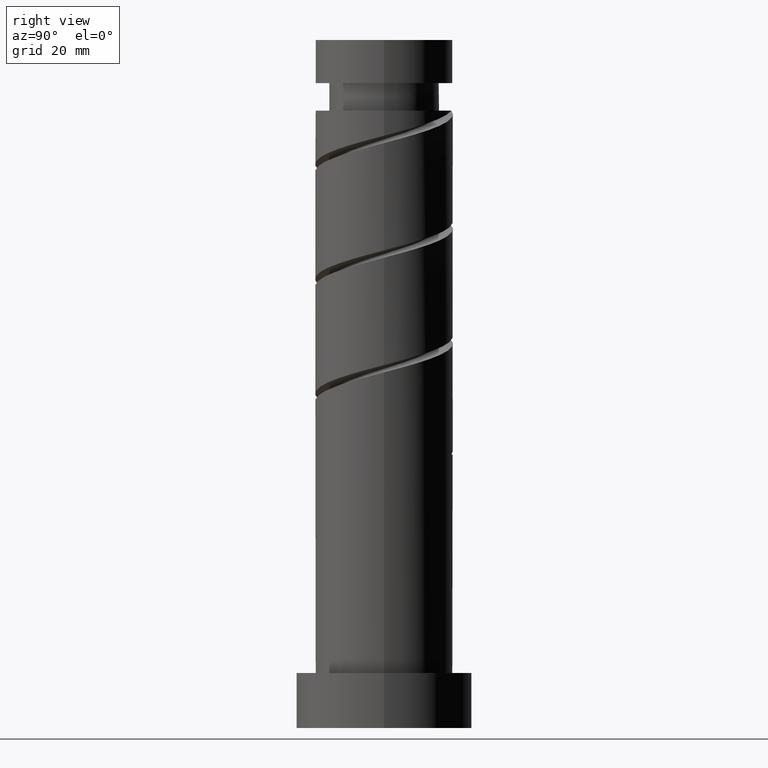
[diagram: clean part render]
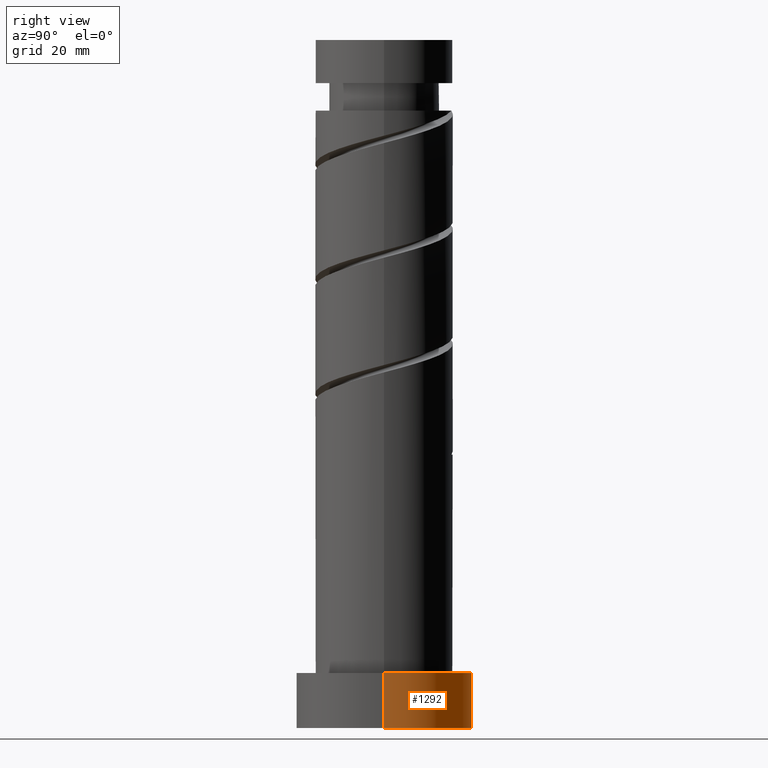
[diagram: same view with one face highlighted and labeled with its STEP entity id]
A machine part, right view. The second image highlights one B-rep face of the part: STEP entity #1292.
In plain terms, the highlighted cylindrical surface (partial cylindrical patch) has radius 16 mm, axis along (-0, -0, -1).
Its self-contained STEP definition (entity closure, byte-faithful):
#2 = CIRCLE ( 'NONE', #1277, 16.00000000000000000 ) ;
#22 = EDGE_CURVE ( 'NONE', #375, #832, #2, .T. ) ;
#149 = DIRECTION ( 'NONE',  ( -1.000000000000000000, 0.000000000000000000, 0.000000000000000000 ) ) ;
#169 = EDGE_CURVE ( 'NONE', #1407, #375, #495, .T. ) ;
#173 = DIRECTION ( 'NONE',  ( 1.000000000000000000, 0.000000000000000000, 0.000000000000000000 ) ) ;
#255 = ORIENTED_EDGE ( 'NONE', *, *, #1359, .F. ) ;
#258 = CARTESIAN_POINT ( 'NONE',  ( -16.00000000000000000, 0.000000000000000000, 10.00000000000000000 ) ) ;
#265 = VECTOR ( 'NONE', #1010, 1000.000000000000000 ) ;
#375 = VERTEX_POINT ( 'NONE', #956 ) ;
#391 = DIRECTION ( 'NONE',  ( -0.000000000000000000, -0.000000000000000000, -1.000000000000000000 ) ) ;
#494 = CARTESIAN_POINT ( 'NONE',  ( 16.00000000000000000, 1.959434878635765131E-15, 10.00000000000000000 ) ) ;
#495 = LINE ( 'NONE', #877, #1249 ) ;
#525 = CARTESIAN_POINT ( 'NONE',  ( -16.00000000000000000, 0.000000000000000000, 10.00000000000000000 ) ) ;
#682 = ORIENTED_EDGE ( 'NONE', *, *, #22, .T. ) ;
#707 = DIRECTION ( 'NONE',  ( 0.000000000000000000, 0.000000000000000000, 1.000000000000000000 ) ) ;
#832 = VERTEX_POINT ( 'NONE', #1451 ) ;
#847 = DIRECTION ( 'NONE',  ( -0.000000000000000000, -0.000000000000000000, -1.000000000000000000 ) ) ;
#877 = CARTESIAN_POINT ( 'NONE',  ( 16.00000000000000000, 1.959434878635765131E-15, 10.00000000000000000 ) ) ;
#889 = EDGE_CURVE ( 'NONE', #1407, #1344, #924, .T. ) ;
#924 = CIRCLE ( 'NONE', #1179, 16.00000000000000000 ) ;
#956 = CARTESIAN_POINT ( 'NONE',  ( 16.00000000000000000, 1.959434878635765131E-15, 0.000000000000000000 ) ) ;
#994 = FACE_OUTER_BOUND ( 'NONE', #1324, .T. ) ;
#1002 = LINE ( 'NONE', #525, #265 ) ;
#1010 = DIRECTION ( 'NONE',  ( -0.000000000000000000, -0.000000000000000000, -1.000000000000000000 ) ) ;
#1043 = CARTESIAN_POINT ( 'NONE',  ( 0.000000000000000000, 0.000000000000000000, 0.000000000000000000 ) ) ;
#1153 = DIRECTION ( 'NONE',  ( 0.000000000000000000, 0.000000000000000000, 1.000000000000000000 ) ) ;
#1165 = ORIENTED_EDGE ( 'NONE', *, *, #169, .T. ) ;
#1179 = AXIS2_PLACEMENT_3D ( 'NONE', #1375, #1153, #173 ) ;
#1190 = DIRECTION ( 'NONE',  ( 1.000000000000000000, 0.000000000000000000, 0.000000000000000000 ) ) ;
#1249 = VECTOR ( 'NONE', #847, 1000.000000000000000 ) ;
#1269 = ORIENTED_EDGE ( 'NONE', *, *, #889, .F. ) ;
#1277 = AXIS2_PLACEMENT_3D ( 'NONE', #1043, #707, #1190 ) ;
#1292 = ADVANCED_FACE ( 'NONE', ( #994 ), #1376, .T. ) ;
#1324 = EDGE_LOOP ( 'NONE', ( #1269, #1165, #682, #255 ) ) ;
#1328 = AXIS2_PLACEMENT_3D ( 'NONE', #1475, #391, #149 ) ;
#1344 = VERTEX_POINT ( 'NONE', #258 ) ;
#1359 = EDGE_CURVE ( 'NONE', #1344, #832, #1002, .T. ) ;
#1375 = CARTESIAN_POINT ( 'NONE',  ( 0.000000000000000000, 0.000000000000000000, 10.00000000000000000 ) ) ;
#1376 = CYLINDRICAL_SURFACE ( 'NONE', #1328, 16.00000000000000000 ) ;
#1407 = VERTEX_POINT ( 'NONE', #494 ) ;
#1451 = CARTESIAN_POINT ( 'NONE',  ( -16.00000000000000000, 0.000000000000000000, 0.000000000000000000 ) ) ;
#1475 = CARTESIAN_POINT ( 'NONE',  ( 0.000000000000000000, 0.000000000000000000, 10.00000000000000000 ) ) ;